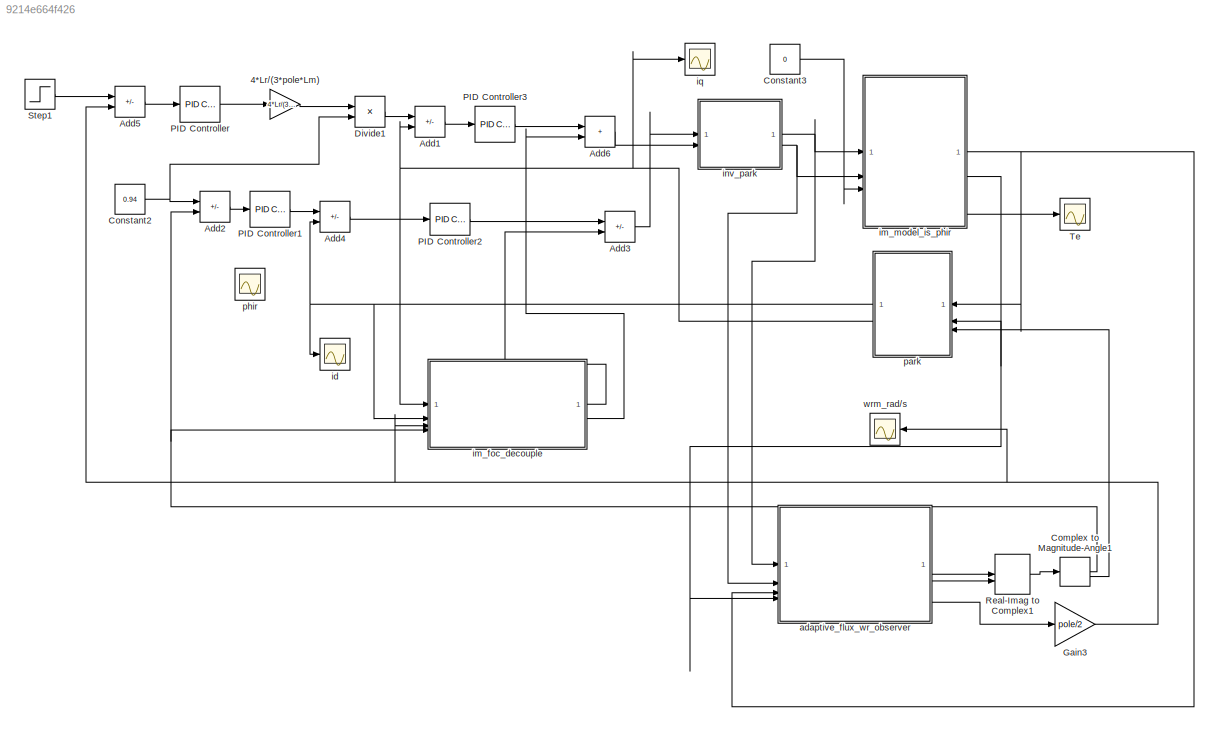
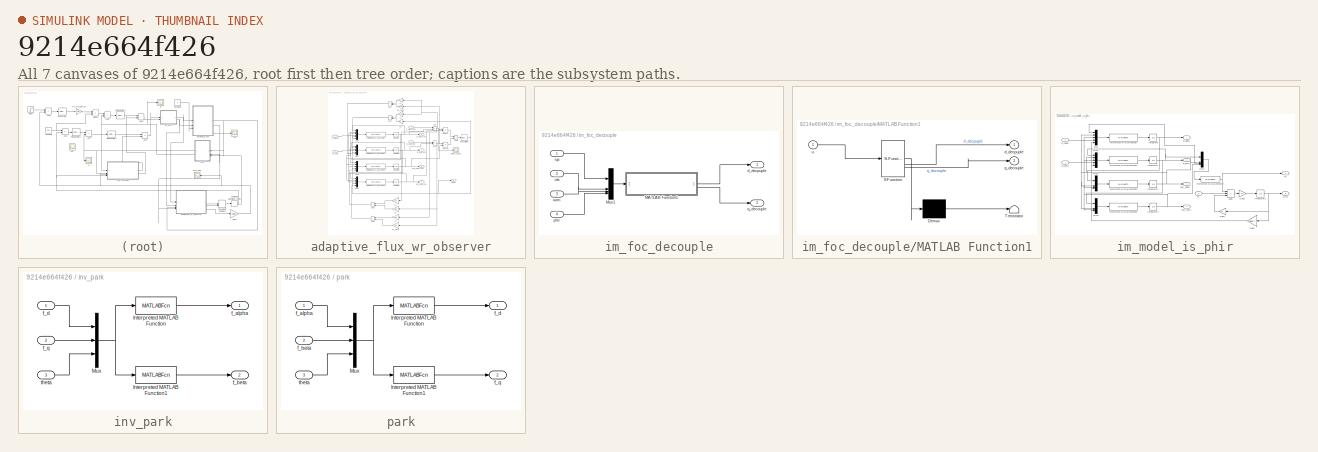
[diagram: thumbnail index - all 7 canvases of the model, root first then tree order]
MODEL slx_9214e664f426
KIND model
CONFIG AbsTol = auto
CONFIG EnableMultiTasking = off
CONFIG FixedStep = 0.001
CONFIG MaxStep = auto
CONFIG MinStep = auto
CONFIG RelTol = 1e-3
CONFIG SampleTimeConstraint = Unconstrained
CONFIG SolverName = VariableStepAuto
CONFIG StartTime = 0.0
CONFIG StopTime = 1
BLOCK [Gain] 4*Lr//(3*pole*Lm)
  Gain = 4*Lr/(3*pole*Lm)
  NameLocation = top
BLOCK [Sum] Add1
  IconShape = rectangular
  Inputs = +-
BLOCK [Sum] Add2
  IconShape = rectangular
  Inputs = +-
BLOCK [Sum] Add3
  IconShape = rectangular
  Inputs = +-
BLOCK [Sum] Add4
  IconShape = rectangular
  Inputs = +-
BLOCK [Sum] Add5
  IconShape = rectangular
  Inputs = +-
BLOCK [Sum] Add6
  IconShape = rectangular
BLOCK [ComplexToMagnitudeAngle] Complex to Magnitude-Angle1
BLOCK [Constant] Constant2
  Value = 0.94
BLOCK [Constant] Constant3
  Value = 0
BLOCK [Product] Divide1
  Inputs = */
BLOCK [Gain] Gain3
  Gain = pole/2
  NameLocation = top
BLOCK [Reference] PID Controller  REF=slpidlib/PID Controller
  LibrarySourceBlock = simulink/Continuous/PID Controller
  SourceBlock = slpidlib/PID Controller
  SourceType = PID 1dof
BLOCK [Reference] PID Controller1  REF=slpidlib/PID Controller
  LibrarySourceBlock = simulink/Continuous/PID Controller
  SourceBlock = slpidlib/PID Controller
  SourceType = PID 1dof
BLOCK [Reference] PID Controller2  REF=slpidlib/PID Controller
  LibrarySourceBlock = simulink/Continuous/PID Controller
  SourceBlock = slpidlib/PID Controller
  SourceType = PID 1dof
BLOCK [Reference] PID Controller3  REF=slpidlib/PID Controller
  LibrarySourceBlock = simulink/Continuous/PID Controller
  SourceBlock = slpidlib/PID Controller
  SourceType = PID 1dof
BLOCK [RealImagToComplex] Real-Imag to Complex1
BLOCK [Step] Step1
  After = 100
  SampleTime = 0
  Time = 0
BLOCK [Scope] Te
  Floating = off
  NumInputPorts = 1
  ScopeSpecificationString = Simulink.scopes.TimeScopeBlockCfg('CurrentConfiguration', extmgr.ConfigurationSet(extmgr.Configuration('Core','General UI',true,'FigureColor',[1 1 1]),extmgr.Configuration('Core','Source UI',true),extmgr.Configuration('Sources','WiredSimulink',true,'DataLoggingVariableName','ScopeData1'),extmgr.Configuration('Visuals','Time Domain',true,'SerializedDisplays',{struct('MinYLimReal','-1.53987','MaxYLi...<+1574ch>
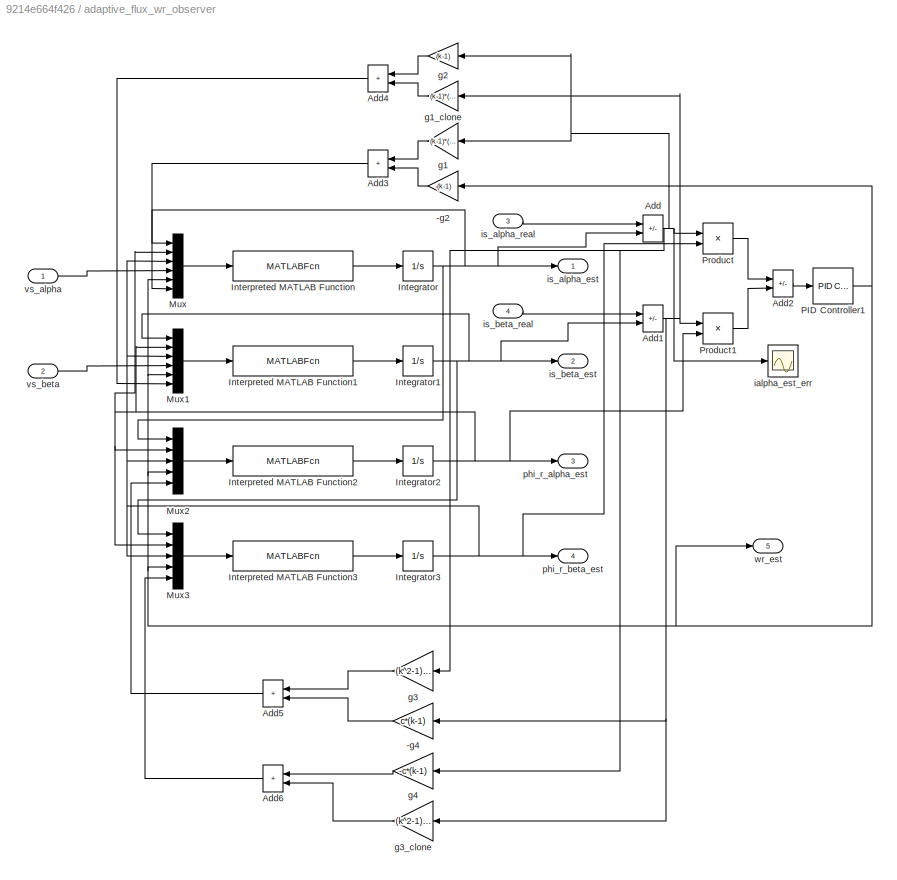
BLOCK [SubSystem] adaptive_flux_wr_observer
BLOCK [Gain] adaptive_flux_wr_observer/-g2
  Gain = -(k-1)
BLOCK [Gain] adaptive_flux_wr_observer/-g4
  Gain = c*(k-1)
BLOCK [Sum] adaptive_flux_wr_observer/Add
  IconShape = rectangular
  Inputs = +-
BLOCK [Sum] adaptive_flux_wr_observer/Add1
  IconShape = rectangular
  Inputs = +-
BLOCK [Sum] adaptive_flux_wr_observer/Add2
  IconShape = rectangular
  Inputs = +-
BLOCK [Sum] adaptive_flux_wr_observer/Add3
  IconShape = rectangular
BLOCK [Sum] adaptive_flux_wr_observer/Add4
  IconShape = rectangular
BLOCK [Sum] adaptive_flux_wr_observer/Add5
  IconShape = rectangular
BLOCK [Sum] adaptive_flux_wr_observer/Add6
  IconShape = rectangular
BLOCK [Integrator] adaptive_flux_wr_observer/Integrator
BLOCK [Integrator] adaptive_flux_wr_observer/Integrator1
BLOCK [Integrator] adaptive_flux_wr_observer/Integrator2
BLOCK [Integrator] adaptive_flux_wr_observer/Integrator3
BLOCK [MATLABFcn] adaptive_flux_wr_observer/Interpreted MATLAB Function
  MATLABFcn = K1*u(1)+K2*u(2)+K3*u(5)*u(3)+K4*u(4)
BLOCK [MATLABFcn] adaptive_flux_wr_observer/Interpreted MATLAB Function1
  MATLABFcn = K1*u(1)-K3*u(5)*u(2)+K2*u(3)+K4*u(4)
BLOCK [MATLABFcn] adaptive_flux_wr_observer/Interpreted MATLAB Function2
  MATLABFcn = K5*u(1)+K6*u(2)-u(4)*u(3)
BLOCK [MATLABFcn] adaptive_flux_wr_observer/Interpreted MATLAB Function3
  MATLABFcn = K5*u(1)+u(4)*u(2)+K6*u(3)
BLOCK [Mux] adaptive_flux_wr_observer/Mux
  DisplayOption = bar
  Inputs = 6
BLOCK [Mux] adaptive_flux_wr_observer/Mux1
  DisplayOption = bar
  Inputs = 6
BLOCK [Mux] adaptive_flux_wr_observer/Mux2
  DisplayOption = bar
  Inputs = 5
BLOCK [Mux] adaptive_flux_wr_observer/Mux3
  DisplayOption = bar
  Inputs = 5
BLOCK [Reference] adaptive_flux_wr_observer/PID Controller1  REF=slpidlib/PID Controller
  LibrarySourceBlock = simulink/Continuous/PID Controller
  SourceBlock = slpidlib/PID Controller
  SourceType = PID 1dof
BLOCK [Product] adaptive_flux_wr_observer/Product
BLOCK [Product] adaptive_flux_wr_observer/Product1
BLOCK [Gain] adaptive_flux_wr_observer/g1
  Gain = (k-1)*(K1+K6)
BLOCK [Gain] adaptive_flux_wr_observer/g1_clone
  Gain = (k-1)*(K1+K6)
BLOCK [Gain] adaptive_flux_wr_observer/g2
  Gain = (k-1)
BLOCK [Gain] adaptive_flux_wr_observer/g3
  Gain = (k^2-1)*(c*K1+K5)-c*(k-1)*(K1+K6)
BLOCK [Gain] adaptive_flux_wr_observer/g3_clone
  Gain = (k^2-1)*(c*K1+K5)-c*(k-1)*(K1+K6)
BLOCK [Gain] adaptive_flux_wr_observer/g4
  Gain = -c*(k-1)
BLOCK [Scope] adaptive_flux_wr_observer/ialpha_est_err
  Floating = off
  NumInputPorts = 1
  ScopeSpecificationString = Simulink.scopes.TimeScopeBlockCfg('CurrentConfiguration', extmgr.ConfigurationSet(extmgr.Configuration('Core','General UI',true,'FigureColor',[1 1 1]),extmgr.Configuration('Core','Source UI',true),extmgr.Configuration('Sources','WiredSimulink',true,'DataLoggingVariableName','ScopeData2'),extmgr.Configuration('Visuals','Time Domain',true,'SerializedDisplays',{struct('MinYLimReal','-0.64371','MaxYLi...<+1539ch>
BLOCK [Outport] adaptive_flux_wr_observer/is_alpha_est
BLOCK [Inport] adaptive_flux_wr_observer/is_alpha_real
  Port = 3
BLOCK [Outport] adaptive_flux_wr_observer/is_beta_est
  Port = 2
BLOCK [Inport] adaptive_flux_wr_observer/is_beta_real
  Port = 4
BLOCK [Outport] adaptive_flux_wr_observer/phi_r_alpha_est
  Port = 3
BLOCK [Outport] adaptive_flux_wr_observer/phi_r_beta_est
  Port = 4
BLOCK [Inport] adaptive_flux_wr_observer/vs_alpha
BLOCK [Inport] adaptive_flux_wr_observer/vs_beta
  Port = 2
BLOCK [Outport] adaptive_flux_wr_observer/wr_est
  Port = 5
BLOCK [Scope] id
  Floating = off
  NumInputPorts = 1
  ScopeSpecificationString = Simulink.scopes.TimeScopeBlockCfg('CurrentConfiguration', extmgr.ConfigurationSet(extmgr.Configuration('Core','General UI',true,'FigureColor',[1 1 1]),extmgr.Configuration('Core','Source UI',true),extmgr.Configuration('Sources','WiredSimulink',true,'DataLoggingVariableName','ScopeData4'),extmgr.Configuration('Visuals','Time Domain',true,'SerializedDisplays',{struct('MinYLimReal','-49.733','MaxYLim...<+1560ch>
BLOCK [SubSystem] im_foc_decouple
BLOCK [SubSystem] im_foc_decouple/MATLAB Function1
  ErrorFcn = Stateflow.Translate.translate
  LibrarySourceBlock = simulink/User-Defined\nFunctions/MATLAB Function
  PermitHierarchicalResolution = ExplicitOnly
  SFBlockType = MATLAB Function
  TreatAsAtomicUnit = on
BLOCK [Demux] im_foc_decouple/MATLAB Function1/ Demux 
  Outputs = 1
BLOCK [S-Function] im_foc_decouple/MATLAB Function1/ SFunction 
  EnableBusSupport = on
  FunctionName = sf_sfun
  PortCounts = [1 3]
  SFcnIsStateOwnerBlock = off
  SFunctionDeploymentMode = off
  Tag = Stateflow S-Function 1
BLOCK [Terminator] im_foc_decouple/MATLAB Function1/ Terminator 
BLOCK [Outport] im_foc_decouple/MATLAB Function1/d_decpuple
BLOCK [Outport] im_foc_decouple/MATLAB Function1/q_decouple
  Port = 2
BLOCK [Inport] im_foc_decouple/MATLAB Function1/u
BLOCK [Mux] im_foc_decouple/Mux1
  DisplayOption = bar
BLOCK [Outport] im_foc_decouple/d_decpuple
BLOCK [Inport] im_foc_decouple/ids
  Port = 2
BLOCK [Inport] im_foc_decouple/iqs
BLOCK [Inport] im_foc_decouple/phir
  Port = 4
BLOCK [Outport] im_foc_decouple/q_decouple
  Port = 2
BLOCK [Inport] im_foc_decouple/wrm
  Port = 3
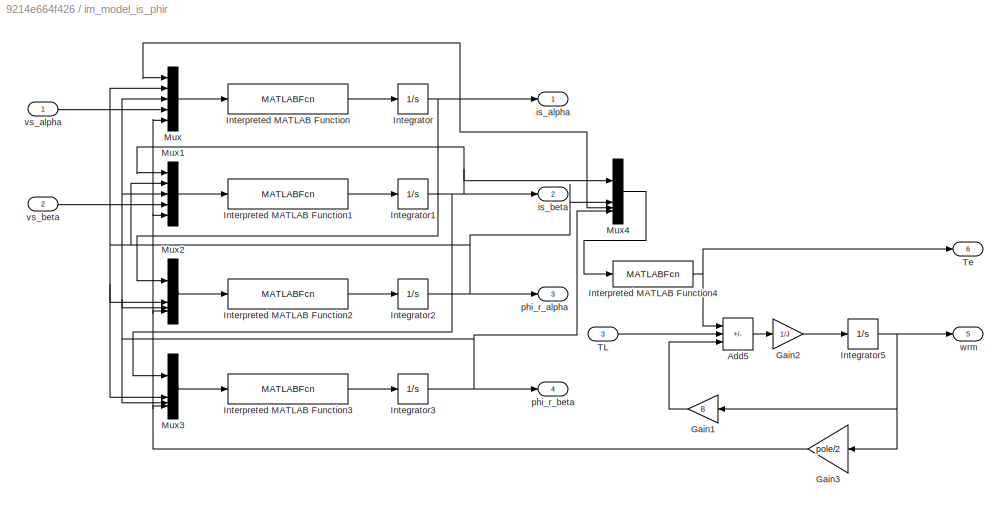
BLOCK [SubSystem] im_model_is_phir
BLOCK [Sum] im_model_is_phir/Add5
  IconShape = rectangular
  Inputs = +--
BLOCK [Gain] im_model_is_phir/Gain1
  Gain = B
BLOCK [Gain] im_model_is_phir/Gain2
  Gain = 1/J
BLOCK [Gain] im_model_is_phir/Gain3
  Gain = pole/2
BLOCK [Integrator] im_model_is_phir/Integrator
BLOCK [Integrator] im_model_is_phir/Integrator1
BLOCK [Integrator] im_model_is_phir/Integrator2
BLOCK [Integrator] im_model_is_phir/Integrator3
BLOCK [Integrator] im_model_is_phir/Integrator5
BLOCK [MATLABFcn] im_model_is_phir/Interpreted MATLAB Function
  MATLABFcn = K1*u(1)+K2*u(2)+K3*u(5)*u(3)+K4*u(4)
BLOCK [MATLABFcn] im_model_is_phir/Interpreted MATLAB Function1
  MATLABFcn = K1*u(1)-K3*u(5)*u(2)+K2*u(3)+K4*u(4)
BLOCK [MATLABFcn] im_model_is_phir/Interpreted MATLAB Function2
  MATLABFcn = K5*u(1)+K6*u(2)-u(4)*u(3)
BLOCK [MATLABFcn] im_model_is_phir/Interpreted MATLAB Function3
  MATLABFcn = K5*u(1)+u(4)*u(2)+K6*u(3)
BLOCK [MATLABFcn] im_model_is_phir/Interpreted MATLAB Function4
  MATLABFcn = (u(1)*u(2)-u(3)*u(4))*3*pole*Lm/(4*Lr)
BLOCK [Mux] im_model_is_phir/Mux
  DisplayOption = bar
  Inputs = 5
BLOCK [Mux] im_model_is_phir/Mux1
  DisplayOption = bar
  Inputs = 5
BLOCK [Mux] im_model_is_phir/Mux2
  DisplayOption = bar
BLOCK [Mux] im_model_is_phir/Mux3
  DisplayOption = bar
BLOCK [Mux] im_model_is_phir/Mux4
  DisplayOption = bar
BLOCK [Inport] im_model_is_phir/TL
  Port = 3
BLOCK [Outport] im_model_is_phir/Te
  Port = 6
BLOCK [Outport] im_model_is_phir/is_alpha
BLOCK [Outport] im_model_is_phir/is_beta
  Port = 2
BLOCK [Outport] im_model_is_phir/phi_r_alpha
  Port = 3
BLOCK [Outport] im_model_is_phir/phi_r_beta
  Port = 4
BLOCK [Inport] im_model_is_phir/vs_alpha
BLOCK [Inport] im_model_is_phir/vs_beta
  Port = 2
BLOCK [Outport] im_model_is_phir/wrm
  Port = 5
BLOCK [SubSystem] inv_park
BLOCK [MATLABFcn] inv_park/Interpreted MATLAB Function
  MATLABFcn = cos(u(3))*u(1)-sin(u(3))*u(2)
BLOCK [MATLABFcn] inv_park/Interpreted MATLAB Function1
  MATLABFcn = sin(u(3))*u(1)+cos(u(3))*u(2)
BLOCK [Mux] inv_park/Mux
  DisplayOption = bar
  Inputs = 3
BLOCK [Outport] inv_park/f_alpha
BLOCK [Outport] inv_park/f_beta
  Port = 2
BLOCK [Inport] inv_park/f_d
BLOCK [Inport] inv_park/f_q
  Port = 2
BLOCK [Inport] inv_park/theta
  Port = 3
BLOCK [Scope] iq
  Floating = off
  NumInputPorts = 1
  ScopeSpecificationString = Simulink.scopes.TimeScopeBlockCfg('CurrentConfiguration', extmgr.ConfigurationSet(extmgr.Configuration('Core','General UI',true,'FigureColor',[1 1 1]),extmgr.Configuration('Core','Source UI',true),extmgr.Configuration('Sources','WiredSimulink',true,'DataLoggingVariableName','ScopeData1'),extmgr.Configuration('Visuals','Time Domain',true,'SerializedDisplays',{struct('MinYLimReal','-0.57991','MaxYLi...<+1558ch>
BLOCK [SubSystem] park
BLOCK [MATLABFcn] park/Interpreted MATLAB Function
  MATLABFcn = cos(u(3))*u(1)+sin(u(3))*u(2)
BLOCK [MATLABFcn] park/Interpreted MATLAB Function1
  MATLABFcn = -sin(u(3))*u(1)+cos(u(3))*u(2)
BLOCK [Mux] park/Mux
  DisplayOption = bar
  Inputs = 3
BLOCK [Inport] park/f_alpha
BLOCK [Inport] park/f_beta
  Port = 2
BLOCK [Outport] park/f_d
BLOCK [Outport] park/f_q
  Port = 2
BLOCK [Inport] park/theta
  Port = 3
BLOCK [Scope] phir
  Floating = off
  NumInputPorts = 1
  ScopeSpecificationString = Simulink.scopes.TimeScopeBlockCfg('CurrentConfiguration', extmgr.ConfigurationSet(extmgr.Configuration('Core','General UI',true,'FigureColor',[1 1 1]),extmgr.Configuration('Core','Source UI',true),extmgr.Configuration('Sources','WiredSimulink',true,'DataLoggingVariableName','ScopeData2'),extmgr.Configuration('Visuals','Time Domain',true,'SerializedDisplays',{struct('MinYLimReal','-0.1175','MaxYLim...<+1559ch>
BLOCK [Scope] wrm_rad//s
  Floating = off
  NameLocation = top
  NumInputPorts = 1
  ScopeSpecificationString = Simulink.scopes.TimeScopeBlockCfg('CurrentConfiguration', extmgr.ConfigurationSet(extmgr.Configuration('Core','General UI',true,'FigureColor',[1 1 1]),extmgr.Configuration('Core','Source UI',true),extmgr.Configuration('Sources','WiredSimulink',true,'DataLoggingVariableName','ScopeData1'),extmgr.Configuration('Visuals','Time Domain',true,'SerializedDisplays',{struct('MinYLimReal','-12.53474','MaxYL...<+1580ch>
LINE 4*Lr//(3*pole*Lm):1 -> Divide1:1
LINE Add1:1 -> PID Controller3:1
LINE Add2:1 -> PID Controller1:1
LINE Add3:1 -> inv_park:1
LINE Add4:1 -> PID Controller2:1
LINE Add5:1 -> PID Controller:1
LINE Add6:1 -> inv_park:2
NET Complex to Magnitude-Angle1:1 -> Add2:2, im_foc_decouple:4
LINE Complex to Magnitude-Angle1:2 -> park:3
NET Constant2:1 -> Add2:1, Divide1:2
LINE Constant3:1 -> im_model_is_phir:3
LINE Divide1:1 -> Add1:1
NET Gain3:1 -> Add5:2, im_foc_decouple:3, wrm_rad//s:1
LINE PID Controller1:1 -> Add4:1
LINE PID Controller2:1 -> Add3:1
LINE PID Controller3:1 -> Add6:1
LINE PID Controller:1 -> 4*Lr//(3*pole*Lm):1
LINE Real-Imag to Complex1:1 -> Complex to Magnitude-Angle1:1
LINE Step1:1 -> Add5:1
LINE adaptive_flux_wr_observer/-g2:1 -> adaptive_flux_wr_observer/Add3:2
LINE adaptive_flux_wr_observer/-g4:1 -> adaptive_flux_wr_observer/Add5:2
NET adaptive_flux_wr_observer/Add1:1 -> adaptive_flux_wr_observer/-g4:1, adaptive_flux_wr_observer/Product1:1, adaptive_flux_wr_observer/g1_clone:1, adaptive_flux_wr_observer/g3_clone:1
LINE adaptive_flux_wr_observer/Add2:1 -> adaptive_flux_wr_observer/PID Controller1:1
LINE adaptive_flux_wr_observer/Add3:1 -> adaptive_flux_wr_observer/Mux:6
LINE adaptive_flux_wr_observer/Add4:1 -> adaptive_flux_wr_observer/Mux1:6
LINE adaptive_flux_wr_observer/Add5:1 -> adaptive_flux_wr_observer/Mux2:5
LINE adaptive_flux_wr_observer/Add6:1 -> adaptive_flux_wr_observer/Mux3:5
NET adaptive_flux_wr_observer/Add:1 -> adaptive_flux_wr_observer/Product:1, adaptive_flux_wr_observer/g1:1, adaptive_flux_wr_observer/g2:1, adaptive_flux_wr_observer/g3:1, adaptive_flux_wr_observer/g4:1, adaptive_flux_wr_observer/ialpha_est_err:1
NET adaptive_flux_wr_observer/Integrator1:1 -> adaptive_flux_wr_observer/Add1:2, adaptive_flux_wr_observer/Mux1:1, adaptive_flux_wr_observer/Mux3:1, adaptive_flux_wr_observer/is_beta_est:1
NET adaptive_flux_wr_observer/Integrator2:1 -> adaptive_flux_wr_observer/Mux1:2, adaptive_flux_wr_observer/Mux2:2, adaptive_flux_wr_observer/Mux3:2, adaptive_flux_wr_observer/Mux:2, adaptive_flux_wr_observer/Product1:2, adaptive_flux_wr_observer/phi_r_alpha_est:1
NET adaptive_flux_wr_observer/Integrator3:1 -> adaptive_flux_wr_observer/Mux1:3, adaptive_flux_wr_observer/Mux2:3, adaptive_flux_wr_observer/Mux3:3, adaptive_flux_wr_observer/Mux:3, adaptive_flux_wr_observer/Product:2, adaptive_flux_wr_observer/phi_r_beta_est:1
NET adaptive_flux_wr_observer/Integrator:1 -> adaptive_flux_wr_observer/Add:2, adaptive_flux_wr_observer/Mux2:1, adaptive_flux_wr_observer/Mux:1, adaptive_flux_wr_observer/is_alpha_est:1
LINE adaptive_flux_wr_observer/Interpreted MATLAB Function1:1 -> adaptive_flux_wr_observer/Integrator1:1
LINE adaptive_flux_wr_observer/Interpreted MATLAB Function2:1 -> adaptive_flux_wr_observer/Integrator2:1
LINE adaptive_flux_wr_observer/Interpreted MATLAB Function3:1 -> adaptive_flux_wr_observer/Integrator3:1
LINE adaptive_flux_wr_observer/Interpreted MATLAB Function:1 -> adaptive_flux_wr_observer/Integrator:1
LINE adaptive_flux_wr_observer/Mux1:1 -> adaptive_flux_wr_observer/Interpreted MATLAB Function1:1
LINE adaptive_flux_wr_observer/Mux2:1 -> adaptive_flux_wr_observer/Interpreted MATLAB Function2:1
LINE adaptive_flux_wr_observer/Mux3:1 -> adaptive_flux_wr_observer/Interpreted MATLAB Function3:1
LINE adaptive_flux_wr_observer/Mux:1 -> adaptive_flux_wr_observer/Interpreted MATLAB Function:1
NET adaptive_flux_wr_observer/PID Controller1:1 -> adaptive_flux_wr_observer/-g2:1, adaptive_flux_wr_observer/Mux1:5, adaptive_flux_wr_observer/Mux2:4, adaptive_flux_wr_observer/Mux3:4, adaptive_flux_wr_observer/Mux:5, adaptive_flux_wr_observer/wr_est:1
LINE adaptive_flux_wr_observer/Product1:1 -> adaptive_flux_wr_observer/Add2:2
LINE adaptive_flux_wr_observer/Product:1 -> adaptive_flux_wr_observer/Add2:1
LINE adaptive_flux_wr_observer/g1:1 -> adaptive_flux_wr_observer/Add3:1
LINE adaptive_flux_wr_observer/g1_clone:1 -> adaptive_flux_wr_observer/Add4:2
LINE adaptive_flux_wr_observer/g2:1 -> adaptive_flux_wr_observer/Add4:1
LINE adaptive_flux_wr_observer/g3:1 -> adaptive_flux_wr_observer/Add5:1
LINE adaptive_flux_wr_observer/g3_clone:1 -> adaptive_flux_wr_observer/Add6:2
LINE adaptive_flux_wr_observer/g4:1 -> adaptive_flux_wr_observer/Add6:1
LINE adaptive_flux_wr_observer/is_alpha_real:1 -> adaptive_flux_wr_observer/Add:1
LINE adaptive_flux_wr_observer/is_beta_real:1 -> adaptive_flux_wr_observer/Add1:1
LINE adaptive_flux_wr_observer/vs_alpha:1 -> adaptive_flux_wr_observer/Mux:4
LINE adaptive_flux_wr_observer/vs_beta:1 -> adaptive_flux_wr_observer/Mux1:4
LINE adaptive_flux_wr_observer:3 -> Real-Imag to Complex1:1
LINE adaptive_flux_wr_observer:4 -> Real-Imag to Complex1:2
LINE adaptive_flux_wr_observer:5 -> Gain3:1
LINE im_foc_decouple/MATLAB Function1:1 -> im_foc_decouple/d_decpuple:1
LINE im_foc_decouple/MATLAB Function1:2 -> im_foc_decouple/q_decouple:1
LINE im_foc_decouple/Mux1:1 -> im_foc_decouple/MATLAB Function1:1
LINE im_foc_decouple/ids:1 -> im_foc_decouple/Mux1:2
LINE im_foc_decouple/iqs:1 -> im_foc_decouple/Mux1:1
LINE im_foc_decouple/phir:1 -> im_foc_decouple/Mux1:4
LINE im_foc_decouple/wrm:1 -> im_foc_decouple/Mux1:3
LINE im_foc_decouple:1 -> Add3:2
LINE im_foc_decouple:2 -> Add6:2
LINE im_model_is_phir/Add5:1 -> im_model_is_phir/Gain2:1
LINE im_model_is_phir/Gain1:1 -> im_model_is_phir/Add5:3
LINE im_model_is_phir/Gain2:1 -> im_model_is_phir/Integrator5:1
NET im_model_is_phir/Gain3:1 -> im_model_is_phir/Mux1:5, im_model_is_phir/Mux2:4, im_model_is_phir/Mux3:4, im_model_is_phir/Mux:5
NET im_model_is_phir/Integrator1:1 -> im_model_is_phir/Mux1:1, im_model_is_phir/Mux3:1, im_model_is_phir/Mux4:1, im_model_is_phir/is_beta:1
NET im_model_is_phir/Integrator2:1 -> im_model_is_phir/Mux1:2, im_model_is_phir/Mux2:2, im_model_is_phir/Mux3:2, im_model_is_phir/Mux4:2, im_model_is_phir/Mux:2, im_model_is_phir/phi_r_alpha:1
NET im_model_is_phir/Integrator3:1 -> im_model_is_phir/Mux1:3, im_model_is_phir/Mux2:3, im_model_is_phir/Mux3:3, im_model_is_phir/Mux4:4, im_model_is_phir/Mux:3, im_model_is_phir/phi_r_beta:1
NET im_model_is_phir/Integrator5:1 -> im_model_is_phir/Gain1:1, im_model_is_phir/Gain3:1, im_model_is_phir/wrm:1
NET im_model_is_phir/Integrator:1 -> im_model_is_phir/Mux2:1, im_model_is_phir/Mux4:3, im_model_is_phir/Mux:1, im_model_is_phir/is_alpha:1
LINE im_model_is_phir/Interpreted MATLAB Function1:1 -> im_model_is_phir/Integrator1:1
LINE im_model_is_phir/Interpreted MATLAB Function2:1 -> im_model_is_phir/Integrator2:1
LINE im_model_is_phir/Interpreted MATLAB Function3:1 -> im_model_is_phir/Integrator3:1
NET im_model_is_phir/Interpreted MATLAB Function4:1 -> im_model_is_phir/Add5:1, im_model_is_phir/Te:1
LINE im_model_is_phir/Interpreted MATLAB Function:1 -> im_model_is_phir/Integrator:1
LINE im_model_is_phir/Mux1:1 -> im_model_is_phir/Interpreted MATLAB Function1:1
LINE im_model_is_phir/Mux2:1 -> im_model_is_phir/Interpreted MATLAB Function2:1
LINE im_model_is_phir/Mux3:1 -> im_model_is_phir/Interpreted MATLAB Function3:1
LINE im_model_is_phir/Mux4:1 -> im_model_is_phir/Interpreted MATLAB Function4:1
LINE im_model_is_phir/Mux:1 -> im_model_is_phir/Interpreted MATLAB Function:1
LINE im_model_is_phir/TL:1 -> im_model_is_phir/Add5:2
LINE im_model_is_phir/vs_alpha:1 -> im_model_is_phir/Mux:4
LINE im_model_is_phir/vs_beta:1 -> im_model_is_phir/Mux1:4
NET im_model_is_phir:1 -> adaptive_flux_wr_observer:3, park:1
NET im_model_is_phir:2 -> adaptive_flux_wr_observer:4, park:2
LINE im_model_is_phir:6 -> Te:1
LINE inv_park/Interpreted MATLAB Function1:1 -> inv_park/f_beta:1
LINE inv_park/Interpreted MATLAB Function:1 -> inv_park/f_alpha:1
NET inv_park/Mux:1 -> inv_park/Interpreted MATLAB Function1:1, inv_park/Interpreted MATLAB Function:1
LINE inv_park/f_d:1 -> inv_park/Mux:1
LINE inv_park/f_q:1 -> inv_park/Mux:2
LINE inv_park/theta:1 -> inv_park/Mux:3
NET inv_park:1 -> adaptive_flux_wr_observer:1, im_model_is_phir:1
NET inv_park:2 -> adaptive_flux_wr_observer:2, im_model_is_phir:2
LINE park/Interpreted MATLAB Function1:1 -> park/f_q:1
LINE park/Interpreted MATLAB Function:1 -> park/f_d:1
NET park/Mux:1 -> park/Interpreted MATLAB Function1:1, park/Interpreted MATLAB Function:1
LINE park/f_alpha:1 -> park/Mux:1
LINE park/f_beta:1 -> park/Mux:2
LINE park/theta:1 -> park/Mux:3
NET park:1 -> Add4:2, id:1, im_foc_decouple:2
NET park:2 -> Add1:2, im_foc_decouple:1, iq:1
note: NET lines group one-source signal fan-out (src -> all destinations, sorted); 1:1 wires keep LINE
CHART im_foc_decouple/MATLAB Function1 states=1 transitions=1
  STATE_LABEL 'eML_blk_kernel()'
  STATE_LABEL 'SCRIPT:\nfunction [d_decpuple, q_decouple] = decouple(u)\n    Rr = 0.6;\n    Lr = 0.085;\n    Ls = 0.085;\n    Lm = 0.082;\n    sigma = 1 - Lm^2/(Ls*Lr);\n    w = Ls*Lr - Lm^2;\n    Lsigma = w/Lr;\n    Tr = Lr/Rr;\n    pole = 4;\n    wslip = (u(1)*Rr)/(u(2)*Lr+1e-8);\n    we = wslip + u(3)*pole/2;\n    d_decpuple = Lsigma*(we*u(1) + (1-sigma)/(sigma*Lm*Tr)*u(4));\n    q_decouple = Lsigma*(we*u(2) + (1-sigma)/(s...<+18ch>'
CHART  states=0 transitions=0
